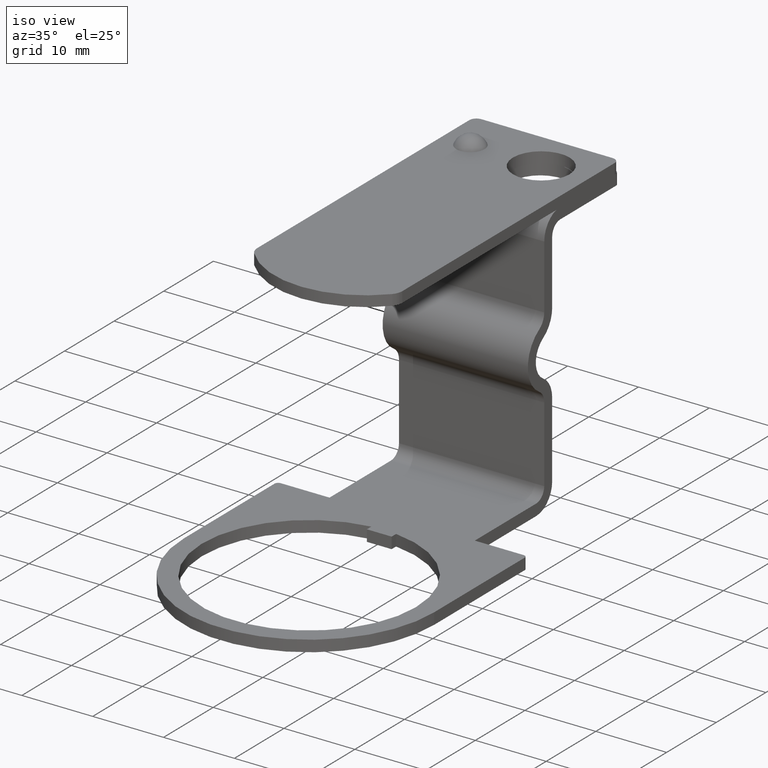
[diagram: clean part render]
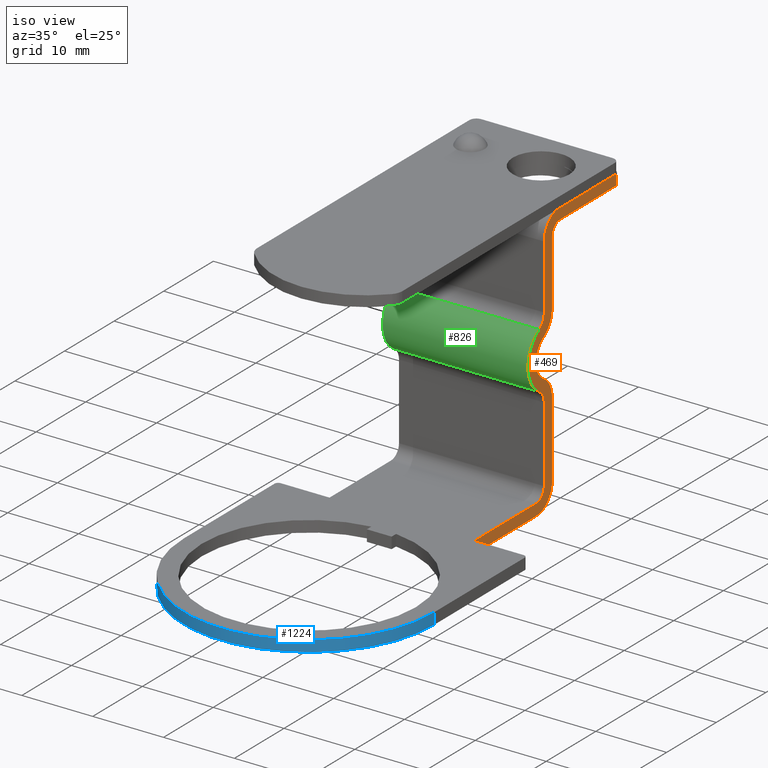
[diagram: same view with three faces highlighted in distinct colors, each labeled with its STEP entity id]
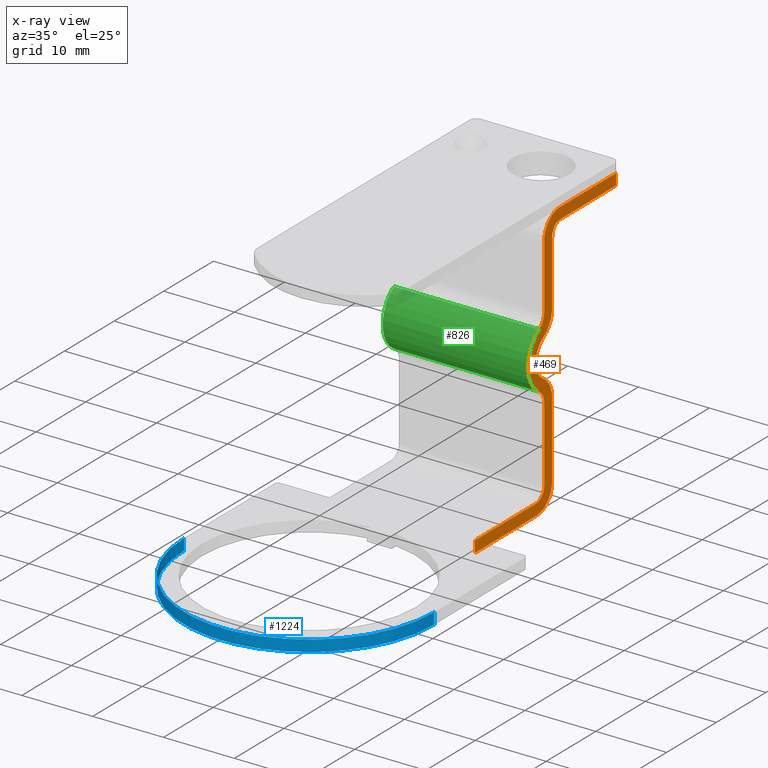
[diagram: x-ray of the same camera — body ghosted, the three highlighted faces saturated]
A machine part, iso view with three faces highlighted in distinct colors.
The next image is the same camera in x-ray (body ghosted, the three faces saturated) — at least one of them is partly hidden behind the body in this view.
Their STEP definitions:

[orange] entity #469 — the highlighted planar face has unit normal (1, 0, 0).
#112=CARTESIAN_POINT('',(12.137544175698896,28.185240578215577,36.0));
#113=VERTEX_POINT('',#112);
#131=CARTESIAN_POINT('',(12.137544175698896,28.185240578215577,37.600000000000001));
#132=VERTEX_POINT('',#131);
#140=CARTESIAN_POINT('',(12.137544175698896,28.185240578215577,37.600000000000001));
#141=DIRECTION('',(0.0,0.0,-1.0));
#142=VECTOR('',#141,1.600000000000001);
#143=LINE('',#140,#142);
#144=EDGE_CURVE('',#132,#113,#143,.T.);
#180=CARTESIAN_POINT('',(12.137544175698896,16.885240578215587,37.600000000000001));
#181=VERTEX_POINT('',#180);
#188=CARTESIAN_POINT('',(12.137544175698896,16.885240578215587,37.600000000000001));
#189=DIRECTION('',(0.0,1.0,0.0));
#190=VECTOR('',#189,11.299999999999990);
#191=LINE('',#188,#190);
#192=EDGE_CURVE('',#181,#132,#191,.T.);
#308=CARTESIAN_POINT('',(12.137544175698896,21.185240578215577,36.800000000000004));
#309=DIRECTION('',(1.0,0.0,0.0));
#310=DIRECTION('',(0.0,0.0,-1.0));
#311=AXIS2_PLACEMENT_3D('',#308,#309,#310);
#312=PLANE('',#311);
#313=ORIENTED_EDGE('',*,*,#144,.F.);
#314=ORIENTED_EDGE('',*,*,#192,.F.);
#315=CARTESIAN_POINT('',(12.137544175698896,13.685240578215579,34.399999999999999));
#316=VERTEX_POINT('',#315);
#317=CARTESIAN_POINT('',(12.137544175698896,16.885240578215576,34.400000000000006));
#318=DIRECTION('',(-1.0,0.0,0.0));
#319=DIRECTION('',(0.0,-1.0,0.0));
#320=AXIS2_PLACEMENT_3D('',#317,#318,#319);
#321=CIRCLE('',#320,3.199999999999998);
#322=EDGE_CURVE('',#316,#181,#321,.T.);
#323=ORIENTED_EDGE('',*,*,#322,.F.);
#324=CARTESIAN_POINT('',(12.137544175698896,13.685240578215579,25.353784950353997));
#325=VERTEX_POINT('',#324);
#326=CARTESIAN_POINT('',(12.137544175698896,13.685240578215579,34.399999999999999));
#327=DIRECTION('',(0.0,0.0,-1.0));
#328=VECTOR('',#327,9.046215049646001);
#329=LINE('',#326,#328);
#330=EDGE_CURVE('',#316,#325,#329,.T.);
#331=ORIENTED_EDGE('',*,*,#330,.T.);
#332=CARTESIAN_POINT('',(12.137544175698896,12.662507523093272,23.571447346867505));
#333=VERTEX_POINT('',#332);
#334=CARTESIAN_POINT('',(12.137544175698896,11.620816135447960,25.353784950353997));
#335=DIRECTION('',(-1.0,-7.248127E-017,1.240157E-016));
#336=DIRECTION('',(1.436434E-016,-0.504591675076657,0.863358118884240));
#337=AXIS2_PLACEMENT_3D('',#334,#335,#336);
#338=CIRCLE('',#337,2.064424442767619);
#339=EDGE_CURVE('',#325,#333,#338,.T.);
#340=ORIENTED_EDGE('',*,*,#339,.T.);
#341=CARTESIAN_POINT('',(12.137544175698896,12.662507523093268,15.628552653132493));
#342=VERTEX_POINT('',#341);
#343=CARTESIAN_POINT('',(12.137544175698896,14.983629228445887,19.599999999999998));
#344=DIRECTION('',(1.000000000000000,7.248127E-017,-1.240157E-016));
#345=DIRECTION('',(1.436434E-016,-0.504591675076655,0.863358118884241));
#346=AXIS2_PLACEMENT_3D('',#343,#344,#345);
#347=CIRCLE('',#346,4.600000000000001);
#348=EDGE_CURVE('',#333,#342,#347,.T.);
#349=ORIENTED_EDGE('',*,*,#348,.T.);
#350=CARTESIAN_POINT('',(12.137544175698896,13.685240578215573,13.846215049646002));
#351=VERTEX_POINT('',#350);
#352=CARTESIAN_POINT('',(12.137544175698896,11.620816135447962,13.846215049645998));
#353=DIRECTION('',(-1.0,0.0,0.0));
#354=DIRECTION('',(0.0,-1.0,0.0));
#355=AXIS2_PLACEMENT_3D('',#352,#353,#354);
#356=CIRCLE('',#355,2.064424442767615);
#357=EDGE_CURVE('',#342,#351,#356,.T.);
#358=ORIENTED_EDGE('',*,*,#357,.T.);
#359=CARTESIAN_POINT('',(12.137544175698896,13.685240578215577,3.200000000000002));
#360=VERTEX_POINT('',#359);
#361=CARTESIAN_POINT('',(12.137544175698896,13.685240578215573,13.846215049646002));
#362=DIRECTION('',(0.0,0.0,-1.0));
#363=VECTOR('',#362,10.646215049645999);
#364=LINE('',#361,#363);
#365=EDGE_CURVE('',#351,#360,#364,.T.);
#366=ORIENTED_EDGE('',*,*,#365,.T.);
#367=CARTESIAN_POINT('',(12.137544175698896,12.085240578215576,1.600000000000000));
#368=VERTEX_POINT('',#367);
#369=CARTESIAN_POINT('',(12.137544175698896,12.085240578215576,3.200000000000001));
#370=DIRECTION('',(1.0,0.0,0.0));
#371=DIRECTION('',(0.0,0.0,-1.0));
#372=AXIS2_PLACEMENT_3D('',#369,#370,#371);
#373=CIRCLE('',#372,1.600000000000001);
#374=EDGE_CURVE('',#368,#360,#373,.T.);
#375=ORIENTED_EDGE('',*,*,#374,.F.);
#376=CARTESIAN_POINT('',(12.137544175698899,-0.314759421784423,1.600000000000000));
#377=VERTEX_POINT('',#376);
#378=CARTESIAN_POINT('',(12.137544175698896,12.085240578215576,1.600000000000000));
#379=DIRECTION('',(0.0,-1.0,0.0));
#380=VECTOR('',#379,12.399999999999999);
#381=LINE('',#378,#380);
#382=EDGE_CURVE('',#368,#377,#381,.T.);
#383=ORIENTED_EDGE('',*,*,#382,.T.);
#384=CARTESIAN_POINT('',(12.137544175698899,-0.314759421784423,0.0));
#385=VERTEX_POINT('',#384);
#386=CARTESIAN_POINT('',(12.137544175698899,-0.314759421784423,0.0));
#387=DIRECTION('',(0.0,0.0,1.0));
#388=VECTOR('',#387,1.600000000000000);
#389=LINE('',#386,#388);
#390=EDGE_CURVE('',#385,#377,#389,.T.);
#391=ORIENTED_EDGE('',*,*,#390,.F.);
#392=CARTESIAN_POINT('',(12.137544175698896,12.085240578215576,2.775558E-016));
#393=VERTEX_POINT('',#392);
#394=CARTESIAN_POINT('',(12.137544175698899,-0.314759421784423,0.0));
#395=DIRECTION('',(0.0,1.0,0.0));
#396=VECTOR('',#395,12.399999999999999);
#397=LINE('',#394,#396);
#398=EDGE_CURVE('',#385,#393,#397,.T.);
#399=ORIENTED_EDGE('',*,*,#398,.T.);
#400=CARTESIAN_POINT('',(12.137544175698896,15.285240578215575,3.200000000000002));
#401=VERTEX_POINT('',#400);
#402=CARTESIAN_POINT('',(12.137544175698896,12.085240578215576,3.200000000000001));
#403=DIRECTION('',(1.0,0.0,0.0));
#404=DIRECTION('',(0.0,0.0,-1.0));
#405=AXIS2_PLACEMENT_3D('',#402,#403,#404);
#406=CIRCLE('',#405,3.200000000000001);
#407=EDGE_CURVE('',#393,#401,#406,.T.);
#408=ORIENTED_EDGE('',*,*,#407,.T.);
#409=CARTESIAN_POINT('',(12.137544175698896,15.285240578215575,13.846215049646005));
#410=VERTEX_POINT('',#409);
#411=CARTESIAN_POINT('',(12.137544175698896,15.285240578215575,3.200000000000002));
#412=DIRECTION('',(0.0,0.0,1.0));
#413=VECTOR('',#412,10.646215049646003);
#414=LINE('',#411,#413);
#415=EDGE_CURVE('',#401,#410,#414,.T.);
#416=ORIENTED_EDGE('',*,*,#415,.T.);
#417=CARTESIAN_POINT('',(12.137544175698896,13.469854203215919,17.009925643347277));
#418=VERTEX_POINT('',#417);
#419=CARTESIAN_POINT('',(12.137544175698896,11.620816135447962,13.846215049645998));
#420=DIRECTION('',(1.0,0.0,0.0));
#421=DIRECTION('',(0.0,1.0,0.0));
#422=AXIS2_PLACEMENT_3D('',#419,#420,#421);
#423=CIRCLE('',#422,3.664424442767615);
#424=EDGE_CURVE('',#410,#418,#423,.T.);
#425=ORIENTED_EDGE('',*,*,#424,.T.);
#426=CARTESIAN_POINT('',(12.137544175698896,13.469854203215919,22.190074356652723));
#427=VERTEX_POINT('',#426);
#428=CARTESIAN_POINT('',(12.137544175698896,14.983629228445887,19.599999999999998));
#429=DIRECTION('',(-1.0,-7.248127E-017,1.240157E-016));
#430=DIRECTION('',(-1.436434E-016,0.504591675076656,-0.863358118884241));
#431=AXIS2_PLACEMENT_3D('',#428,#429,#430);
#432=CIRCLE('',#431,3.000000000000001);
#433=EDGE_CURVE('',#418,#427,#432,.T.);
#434=ORIENTED_EDGE('',*,*,#433,.T.);
#435=CARTESIAN_POINT('',(12.137544175698896,15.285240578215578,25.353784950353997));
#436=VERTEX_POINT('',#435);
#437=CARTESIAN_POINT('',(12.137544175698896,11.620816135447960,25.353784950353997));
#438=DIRECTION('',(1.000000000000000,7.248127E-017,-1.240157E-016));
#439=DIRECTION('',(-1.436434E-016,0.504591675076658,-0.863358118884240));
#440=AXIS2_PLACEMENT_3D('',#437,#438,#439);
#441=CIRCLE('',#440,3.664424442767619);
#442=EDGE_CURVE('',#427,#436,#441,.T.);
#443=ORIENTED_EDGE('',*,*,#442,.T.);
#444=CARTESIAN_POINT('',(12.137544175698896,15.285240578215578,34.399999999999999));
#445=VERTEX_POINT('',#444);
#446=CARTESIAN_POINT('',(12.137544175698896,15.285240578215578,25.353784950353997));
#447=DIRECTION('',(0.0,0.0,1.0));
#448=VECTOR('',#447,9.046215049646001);
#449=LINE('',#446,#448);
#450=EDGE_CURVE('',#436,#445,#449,.T.);
#451=ORIENTED_EDGE('',*,*,#450,.T.);
#452=CARTESIAN_POINT('',(12.137544175698896,16.885240578215587,36.000000000000007));
#453=VERTEX_POINT('',#452);
#454=CARTESIAN_POINT('',(12.137544175698896,16.885240578215576,34.400000000000006));
#455=DIRECTION('',(-1.0,0.0,0.0));
#456=DIRECTION('',(0.0,-1.0,0.0));
#457=AXIS2_PLACEMENT_3D('',#454,#455,#456);
#458=CIRCLE('',#457,1.599999999999999);
#459=EDGE_CURVE('',#445,#453,#458,.T.);
#460=ORIENTED_EDGE('',*,*,#459,.T.);
#461=CARTESIAN_POINT('',(12.137544175698896,28.185240578215577,36.0));
#462=DIRECTION('',(0.0,-1.0,0.0));
#463=VECTOR('',#462,11.299999999999990);
#464=LINE('',#461,#463);
#465=EDGE_CURVE('',#113,#453,#464,.T.);
#466=ORIENTED_EDGE('',*,*,#465,.F.);
#467=EDGE_LOOP('',(#313,#314,#323,#331,#340,#349,#358,#366,#375,#383,#391,#399,#408,#416,#425,#434,#443,#451,#460,#466));
#468=FACE_OUTER_BOUND('',#467,.T.);
#469=ADVANCED_FACE('',(#468),#312,.T.);

[blue] entity #1224 — the highlighted cylindrical surface (partial cylindrical patch) has radius 17.65 mm, axis along (0, 0, 1).
#919=CARTESIAN_POINT('',(19.537544175698901,-19.064759421784430,0.0));
#920=VERTEX_POINT('',#919);
#927=CARTESIAN_POINT('',(-15.762455824301099,-19.064759421784430,0.0));
#928=VERTEX_POINT('',#927);
#929=CARTESIAN_POINT('',(1.887544175698898,-19.064759421784430,0.0));
#930=DIRECTION('',(0.0,0.0,1.0));
#931=DIRECTION('',(-1.0,0.0,0.0));
#932=AXIS2_PLACEMENT_3D('',#929,#930,#931);
#933=CIRCLE('',#932,17.649999999999999);
#934=EDGE_CURVE('',#928,#920,#933,.T.);
#1193=CARTESIAN_POINT('',(1.887544175698898,-19.064759421784430,0.0));
#1194=DIRECTION('',(0.0,0.0,1.0));
#1195=DIRECTION('',(-1.0,0.0,0.0));
#1196=AXIS2_PLACEMENT_3D('',#1193,#1194,#1195);
#1197=CYLINDRICAL_SURFACE('',#1196,17.649999999999999);
#1198=CARTESIAN_POINT('',(19.537544175698901,-19.064759421784430,1.600000000000000));
#1199=VERTEX_POINT('',#1198);
#1200=CARTESIAN_POINT('',(-15.762455824301099,-19.064759421784430,1.600000000000000));
#1201=VERTEX_POINT('',#1200);
#1202=CARTESIAN_POINT('',(1.887544175698898,-19.064759421784430,1.600000000000000));
#1203=DIRECTION('',(0.0,0.0,-1.0));
#1204=DIRECTION('',(-1.0,0.0,0.0));
#1205=AXIS2_PLACEMENT_3D('',#1202,#1203,#1204);
#1206=CIRCLE('',#1205,17.649999999999999);
#1207=EDGE_CURVE('',#1199,#1201,#1206,.T.);
#1208=ORIENTED_EDGE('',*,*,#1207,.T.);
#1209=CARTESIAN_POINT('',(-15.762455824301099,-19.064759421784430,0.0));
#1210=DIRECTION('',(0.0,0.0,1.0));
#1211=VECTOR('',#1210,1.600000000000000);
#1212=LINE('',#1209,#1211);
#1213=EDGE_CURVE('',#928,#1201,#1212,.T.);
#1214=ORIENTED_EDGE('',*,*,#1213,.F.);
#1215=ORIENTED_EDGE('',*,*,#934,.T.);
#1216=CARTESIAN_POINT('',(19.537544175698901,-19.064759421784430,0.0));
#1217=DIRECTION('',(0.0,0.0,1.0));
#1218=VECTOR('',#1217,1.600000000000000);
#1219=LINE('',#1216,#1218);
#1220=EDGE_CURVE('',#920,#1199,#1219,.T.);
#1221=ORIENTED_EDGE('',*,*,#1220,.T.);
#1222=EDGE_LOOP('',(#1208,#1214,#1215,#1221));
#1223=FACE_OUTER_BOUND('',#1222,.T.);
#1224=ADVANCED_FACE('',(#1223),#1197,.T.);

[green] entity #826 — the highlighted cylindrical surface (partial cylindrical patch) has radius 4.6 mm, axis along (-1, 0, 0).
#332=CARTESIAN_POINT('',(12.137544175698896,12.662507523093272,23.571447346867505));
#333=VERTEX_POINT('',#332);
#341=CARTESIAN_POINT('',(12.137544175698896,12.662507523093268,15.628552653132493));
#342=VERTEX_POINT('',#341);
#343=CARTESIAN_POINT('',(12.137544175698896,14.983629228445887,19.599999999999998));
#344=DIRECTION('',(1.000000000000000,7.248127E-017,-1.240157E-016));
#345=DIRECTION('',(1.436434E-016,-0.504591675076655,0.863358118884241));
#346=AXIS2_PLACEMENT_3D('',#343,#344,#345);
#347=CIRCLE('',#346,4.600000000000001);
#348=EDGE_CURVE('',#333,#342,#347,.T.);
#611=CARTESIAN_POINT('',(-8.362455824301112,12.662507523093268,15.628552653132493));
#612=VERTEX_POINT('',#611);
#620=CARTESIAN_POINT('',(-8.362455824301112,12.662507523093272,23.571447346867505));
#621=VERTEX_POINT('',#620);
#622=CARTESIAN_POINT('',(-8.362455824301108,14.983629228445887,19.599999999999998));
#623=DIRECTION('',(1.000000000000000,7.248127E-017,-1.240157E-016));
#624=DIRECTION('',(1.436434E-016,-0.504591675076655,0.863358118884241));
#625=AXIS2_PLACEMENT_3D('',#622,#623,#624);
#626=CIRCLE('',#625,4.600000000000001);
#627=EDGE_CURVE('',#621,#612,#626,.T.);
#799=CARTESIAN_POINT('',(12.137544175698896,12.662507523093272,23.571447346867505));
#800=DIRECTION('',(-1.0,0.0,0.0));
#801=VECTOR('',#800,20.500000000000007);
#802=LINE('',#799,#801);
#803=EDGE_CURVE('',#333,#621,#802,.T.);
#810=CARTESIAN_POINT('',(12.137544175698896,14.983629228445887,19.599999999999998));
#811=DIRECTION('',(-1.0,0.0,0.0));
#812=DIRECTION('',(0.0,-0.504591675076655,0.863358118884241));
#813=AXIS2_PLACEMENT_3D('',#810,#811,#812);
#814=CYLINDRICAL_SURFACE('',#813,4.600000000000001);
#815=ORIENTED_EDGE('',*,*,#627,.T.);
#816=CARTESIAN_POINT('',(12.137544175698896,12.662507523093268,15.628552653132493));
#817=DIRECTION('',(-1.0,0.0,0.0));
#818=VECTOR('',#817,20.500000000000007);
#819=LINE('',#816,#818);
#820=EDGE_CURVE('',#342,#612,#819,.T.);
#821=ORIENTED_EDGE('',*,*,#820,.F.);
#822=ORIENTED_EDGE('',*,*,#348,.F.);
#823=ORIENTED_EDGE('',*,*,#803,.T.);
#824=EDGE_LOOP('',(#815,#821,#822,#823));
#825=FACE_OUTER_BOUND('',#824,.T.);
#826=ADVANCED_FACE('',(#825),#814,.T.);